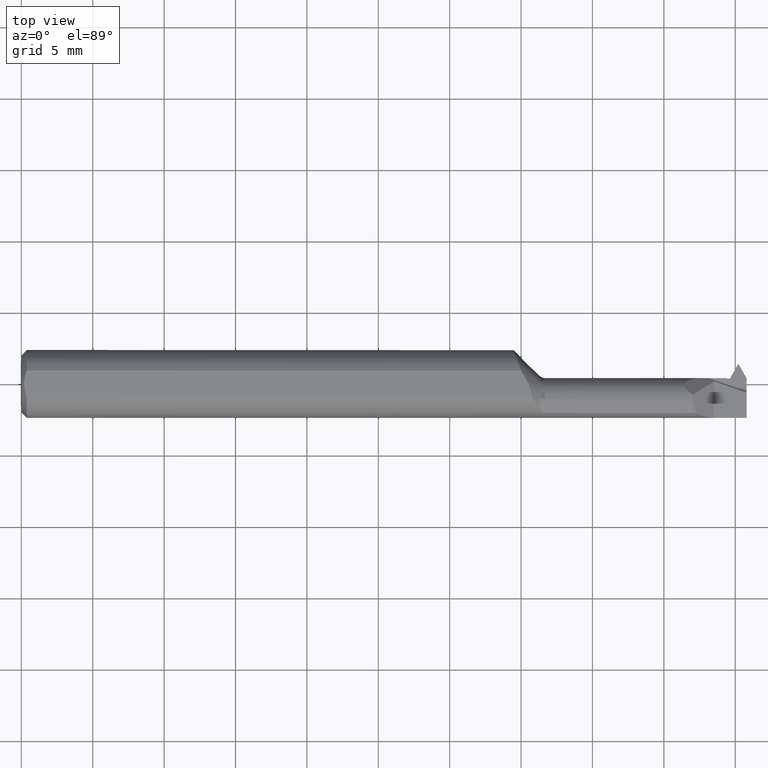
[diagram: clean part render]
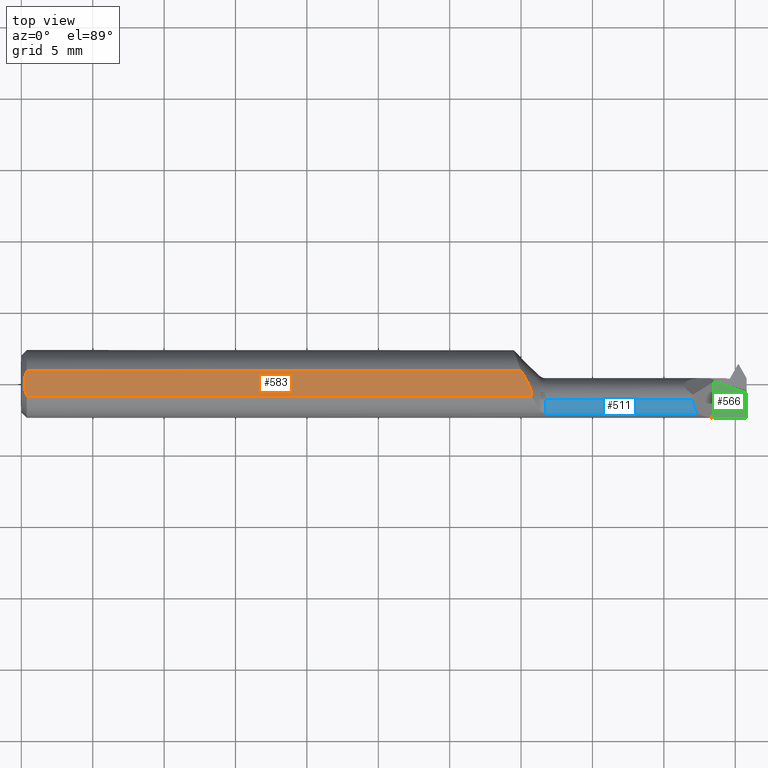
[diagram: same view with three faces highlighted in distinct colors, each labeled with its STEP entity id]
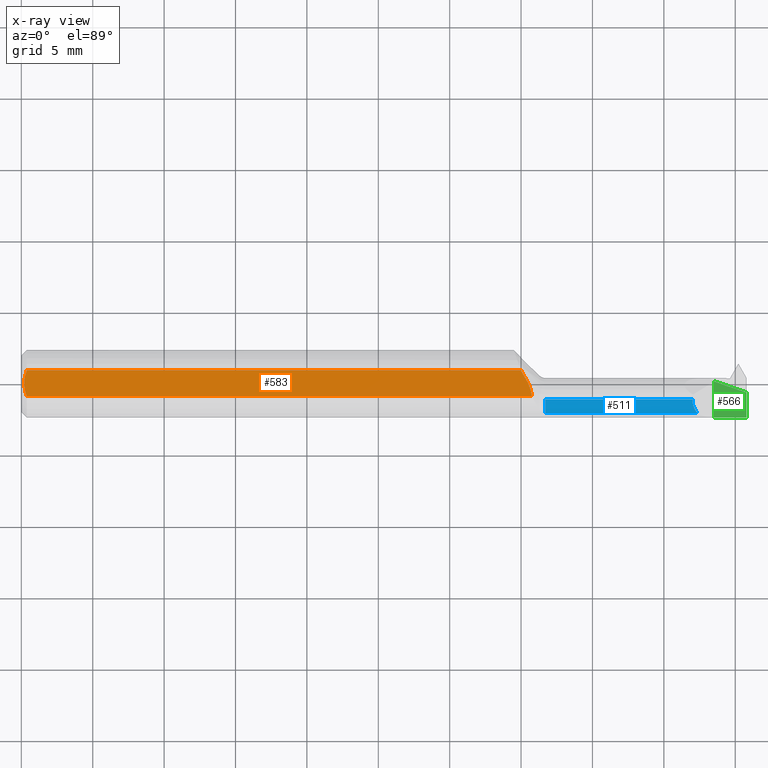
[diagram: x-ray of the same camera — body ghosted, the three highlighted faces saturated]
A machine part, top view with three faces highlighted in distinct colors.
The next image is the same camera in x-ray (body ghosted, the three faces saturated) — at least one of them is partly hidden behind the body in this view.
Their STEP definitions:

[orange] entity #583 — the highlighted planar face has unit normal (-0, 0, -1).
#17 = CARTESIAN_POINT ( 'NONE',  ( 0.01107849272577461977, 0.02400420685728455600, 0.08660000000000001030 ) ) ;
#101 = CARTESIAN_POINT ( 'NONE',  ( 0.008659489716310201507, 0.01217326722089584999, 0.08659999999999998255 ) ) ;
#113 = CARTESIAN_POINT ( 'NONE',  ( 1.377701525703422858, 0.03551619348973097945, 0.08659999999999998255 ) ) ;
#134 = CARTESIAN_POINT ( 'NONE',  ( 0.008649077606599600218, -0.01212214432639825874, 0.08660000000000001030 ) ) ;
#182 = ORIENTED_EDGE ( 'NONE', *, *, #902, .F. ) ;
#187 = PLANE ( 'NONE',  #224 ) ;
#210 = CARTESIAN_POINT ( 'NONE',  ( 0.007999999999999731284, 1.373409503060175658E-17, 0.08659999999999998255 ) ) ;
#224 = AXIS2_PLACEMENT_3D ( 'NONE', #591, #845, #1014 ) ;
#226 = VERTEX_POINT ( 'NONE', #901 ) ;
#233 = ORIENTED_EDGE ( 'NONE', *, *, #820, .F. ) ;
#269 = DIRECTION ( 'NONE',  ( -1.000000000000000000, -0.000000000000000000, -0.000000000000000000 ) ) ;
#273 = VERTEX_POINT ( 'NONE', #468 ) ;
#324 = EDGE_CURVE ( 'NONE', #354, #226, #725, .T. ) ;
#341 = CARTESIAN_POINT ( 'NONE',  ( 1.402683531163871899, -0.009962793248527794868, 0.08659999999999998255 ) ) ;
#348 = CARTESIAN_POINT ( 'NONE',  ( 0.01499999999999997689, -0.03551619348973089618, 0.08659999999999998255 ) ) ;
#350 = LINE ( 'NONE', #775, #645 ) ;
#354 = VERTEX_POINT ( 'NONE', #569 ) ;
#374 = B_SPLINE_CURVE_WITH_KNOTS ( 'NONE', 3,
 ( #590, #688, #781, #341, #869, #430 ),
 .UNSPECIFIED., .F., .F.,
 ( 4, 2, 4 ),
 ( 0.004221996091487671167, 0.005214190001193092991, 0.006206383910898513948 ),
 .UNSPECIFIED. ) ;
#405 = CARTESIAN_POINT ( 'NONE',  ( 0.007999999999999731284, 1.373409503060175658E-17, 0.08659999999999998255 ) ) ;
#406 = ORIENTED_EDGE ( 'NONE', *, *, #324, .T. ) ;
#412 = CARTESIAN_POINT ( 'NONE',  ( 2.000000000000000000, 0.03551619348973089618, 0.08659999999999998255 ) ) ;
#430 = CARTESIAN_POINT ( 'NONE',  ( 1.408023520836405362, -0.03551619348973036189, 0.08659999999999998255 ) ) ;
#453 = CARTESIAN_POINT ( 'NONE',  ( 0.01108864734896783041, -0.02405407040721167788, 0.08659999999999998255 ) ) ;
#468 = CARTESIAN_POINT ( 'NONE',  ( 1.408023520836405362, -0.03551619348973036189, 0.08659999999999998255 ) ) ;
#503 = CARTESIAN_POINT ( 'NONE',  ( 0.007999999999999746897, 0.006084273629736270360, 0.08660000000000001030 ) ) ;
#508 = FACE_OUTER_BOUND ( 'NONE', #1017, .T. ) ;
#509 = VECTOR ( 'NONE', #605, 39.37007874015748143 ) ;
#531 = B_SPLINE_CURVE_WITH_KNOTS ( 'NONE', 3,
 ( #210, #874, #134, #453, #785, #348 ),
 .UNSPECIFIED., .F., .F.,
 ( 4, 2, 4 ),
 ( 0.002803812968293730064, 0.003261451498734896978, 0.003719090029176063891 ),
 .UNSPECIFIED. ) ;
#552 = VERTEX_POINT ( 'NONE', #113 ) ;
#569 = CARTESIAN_POINT ( 'NONE',  ( 0.01499999999999997689, 0.03551619348973089618, 0.08659999999999998255 ) ) ;
#574 = VERTEX_POINT ( 'NONE', #690 ) ;
#583 = ADVANCED_FACE ( 'NONE', ( #508 ), #187, .F. ) ;
#590 = CARTESIAN_POINT ( 'NONE',  ( 1.377701525703422858, 0.03551619348973097945, 0.08659999999999998255 ) ) ;
#591 = CARTESIAN_POINT ( 'NONE',  ( 0.000000000000000000, 0.1749999999999999889, 0.08659999999999998255 ) ) ;
#605 = DIRECTION ( 'NONE',  ( 1.000000000000000000, 0.000000000000000000, 0.000000000000000000 ) ) ;
#626 = CARTESIAN_POINT ( 'NONE',  ( 0.01284132645814099055, 0.02982718733043053169, 0.08659999999999998255 ) ) ;
#645 = VECTOR ( 'NONE', #269, 39.37007874015748143 ) ;
#688 = CARTESIAN_POINT ( 'NONE',  ( 1.384990260883381286, 0.02470984047336751560, 0.08659999999999998255 ) ) ;
#690 = CARTESIAN_POINT ( 'NONE',  ( 0.01499999999999997689, -0.03551619348973089618, 0.08659999999999998255 ) ) ;
#725 = B_SPLINE_CURVE_WITH_KNOTS ( 'NONE', 3,
 ( #1051, #626, #17, #101, #503, #405 ),
 .UNSPECIFIED., .F., .F.,
 ( 4, 2, 4 ),
 ( 0.001890229186177329410, 0.002347021077235529954, 0.002803812968293730064 ),
 .UNSPECIFIED. ) ;
#775 = CARTESIAN_POINT ( 'NONE',  ( 2.000000000000000000, -0.03551619348973089618, 0.08659999999999998255 ) ) ;
#781 = CARTESIAN_POINT ( 'NONE',  ( 1.391750224432351191, 0.01358083083026453974, 0.08660000000000001030 ) ) ;
#785 = CARTESIAN_POINT ( 'NONE',  ( 0.01287312418598231430, -0.02991098762076270859, 0.08660000000000001030 ) ) ;
#820 = EDGE_CURVE ( 'NONE', #354, #552, #838, .T. ) ;
#832 = ORIENTED_EDGE ( 'NONE', *, *, #895, .F. ) ;
#838 = LINE ( 'NONE', #412, #509 ) ;
#845 = DIRECTION ( 'NONE',  ( -0.000000000000000000, 0.000000000000000000, -1.000000000000000000 ) ) ;
#869 = CARTESIAN_POINT ( 'NONE',  ( 1.406820612909631008, -0.02257368972052702441, 0.08660000000000001030 ) ) ;
#874 = CARTESIAN_POINT ( 'NONE',  ( 0.007999999999999741693, -0.006095550506083000954, 0.08659999999999998255 ) ) ;
#895 = EDGE_CURVE ( 'NONE', #552, #273, #374, .T. ) ;
#896 = ORIENTED_EDGE ( 'NONE', *, *, #1022, .T. ) ;
#901 = CARTESIAN_POINT ( 'NONE',  ( 0.007999999999999731284, 1.373409503060175658E-17, 0.08659999999999998255 ) ) ;
#902 = EDGE_CURVE ( 'NONE', #273, #574, #350, .T. ) ;
#1014 = DIRECTION ( 'NONE',  ( -1.000000000000000000, 0.000000000000000000, 0.000000000000000000 ) ) ;
#1017 = EDGE_LOOP ( 'NONE', ( #832, #233, #406, #896, #182 ) ) ;
#1022 = EDGE_CURVE ( 'NONE', #226, #574, #531, .T. ) ;
#1051 = CARTESIAN_POINT ( 'NONE',  ( 0.01499999999999997689, 0.03551619348973089618, 0.08659999999999998255 ) ) ;

[blue] entity #511 — the highlighted cylindrical surface (edge-blend (fillet) strip) has radius 1.524 mm, axis along (-1, -0, -0).
#2 = CARTESIAN_POINT ( 'NONE',  ( 1.863470928347331190, -0.08098532110091748171, 0.04692907165266847758 ) ) ;
#10 = CARTESIAN_POINT ( 'NONE',  ( 1.850399999999999379, -0.04360000000000000681, 0.05999999999999999778 ) ) ;
#12 = ORIENTED_EDGE ( 'NONE', *, *, #191, .T. ) ;
#24 = VECTOR ( 'NONE', #722, 39.37007874015748143 ) ;
#43 = FACE_OUTER_BOUND ( 'NONE', #779, .T. ) ;
#49 = DIRECTION ( 'NONE',  ( 1.000000000000000000, 0.000000000000000000, 0.000000000000000000 ) ) ;
#105 = CARTESIAN_POINT ( 'NONE',  ( 1.445355339059327227, -0.04360000000000000681, 0.05999999999999999778 ) ) ;
#163 = ORIENTED_EDGE ( 'NONE', *, *, #571, .T. ) ;
#169 = VECTOR ( 'NONE', #857, 39.37007874015748143 ) ;
#191 = EDGE_CURVE ( 'NONE', #407, #824, #796, .T. ) ;
#215 = VERTEX_POINT ( 'NONE', #2 ) ;
#244 = CARTESIAN_POINT ( 'NONE',  ( 1.850399999999999379, -0.05731375143557378843, 0.06000000000000001860 ) ) ;
#246 = ORIENTED_EDGE ( 'NONE', *, *, #558, .T. ) ;
#270 = LINE ( 'NONE', #870, #169 ) ;
#307 = AXIS2_PLACEMENT_3D ( 'NONE', #776, #49, #351 ) ;
#332 = VERTEX_POINT ( 'NONE', #494 ) ;
#342 = CARTESIAN_POINT ( 'NONE',  ( 1.854926044998712609, -0.07025909403846865298, 0.05547395500128676077 ) ) ;
#346 = DIRECTION ( 'NONE',  ( -1.000000000000000000, -0.000000000000000000, -0.000000000000000000 ) ) ;
#351 = DIRECTION ( 'NONE',  ( 0.000000000000000000, 0.000000000000000000, 1.000000000000000000 ) ) ;
#398 = EDGE_CURVE ( 'NONE', #215, #407, #925, .T. ) ;
#407 = VERTEX_POINT ( 'NONE', #10 ) ;
#418 = CARTESIAN_POINT ( 'NONE',  ( 1.863470928347331190, -0.08098532110091748171, 0.04692907165266847758 ) ) ;
#431 = DIRECTION ( 'NONE',  ( 0.000000000000000000, 0.000000000000000000, 1.000000000000000000 ) ) ;
#494 = CARTESIAN_POINT ( 'NONE',  ( 1.445355339059327227, -0.08098532110091744007, 0.04692907165266853309 ) ) ;
#501 = ORIENTED_EDGE ( 'NONE', *, *, #398, .T. ) ;
#511 = ADVANCED_FACE ( 'NONE', ( #43 ), #757, .T. ) ;
#558 = EDGE_CURVE ( 'NONE', #332, #215, #270, .T. ) ;
#565 = CARTESIAN_POINT ( 'NONE',  ( 1.434999999999999831, -0.04360000000000000681, 0.05999999999999999778 ) ) ;
#571 = EDGE_CURVE ( 'NONE', #824, #332, #953, .T. ) ;
#595 = CARTESIAN_POINT ( 'NONE',  ( 1.434999999999999831, -0.04360000000000000681, 0.000000000000000000 ) ) ;
#631 = AXIS2_PLACEMENT_3D ( 'NONE', #595, #346, #431 ) ;
#668 = CARTESIAN_POINT ( 'NONE',  ( 1.850399999999999379, -0.04360000000000000681, 0.05999999999999999778 ) ) ;
#722 = DIRECTION ( 'NONE',  ( -1.000000000000000000, -0.000000000000000000, -0.000000000000000000 ) ) ;
#757 = CYLINDRICAL_SURFACE ( 'NONE', #631, 0.05999999999999999778 ) ;
#776 = CARTESIAN_POINT ( 'NONE',  ( 1.445355339059327227, -0.04360000000000000681, 0.000000000000000000 ) ) ;
#779 = EDGE_LOOP ( 'NONE', ( #501, #12, #163, #246 ) ) ;
#796 = LINE ( 'NONE', #565, #24 ) ;
#824 = VERTEX_POINT ( 'NONE', #105 ) ;
#857 = DIRECTION ( 'NONE',  ( 1.000000000000000000, 0.000000000000000000, 0.000000000000000000 ) ) ;
#870 = CARTESIAN_POINT ( 'NONE',  ( 1.692500000000000115, -0.08098532110091744007, 0.04692907165266853309 ) ) ;
#925 =( BOUNDED_CURVE ( )  B_SPLINE_CURVE ( 3, ( #418, #342, #244, #668 ),
 .UNSPECIFIED., .F., .F. ) 
 B_SPLINE_CURVE_WITH_KNOTS ( ( 4, 4 ),
 ( 5.610499824220554821, 6.283185307179586232 ),
 .UNSPECIFIED. ) 
 CURVE ( )  GEOMETRIC_REPRESENTATION_ITEM ( )  RATIONAL_B_SPLINE_CURVE ( ( 1.000000000000000000, 0.9626453375995693840, 0.9626453375995693840, 1.000000000000000000 ) ) 
 REPRESENTATION_ITEM ( '' )  );
#953 = CIRCLE ( 'NONE', #307, 0.05999999999999999778 ) ;

[green] entity #566 — the highlighted planar face has unit normal (-0, 0, -1).
#87 = EDGE_CURVE ( 'NONE', #497, #837, #536, .T. ) ;
#129 = FACE_OUTER_BOUND ( 'NONE', #164, .T. ) ;
#138 = ORIENTED_EDGE ( 'NONE', *, *, #283, .F. ) ;
#155 = EDGE_CURVE ( 'NONE', #854, #995, #455, .T. ) ;
#164 = EDGE_LOOP ( 'NONE', ( #713, #675, #500, #138 ) ) ;
#180 = CARTESIAN_POINT ( 'NONE',  ( 1.910000000000000142, -0.09359999999999998876, -6.429183357567478880E-17 ) ) ;
#220 = CARTESIAN_POINT ( 'NONE',  ( 1.910000000000000142, 0.007137351560174120743, -2.995569586647007890E-17 ) ) ;
#235 = LINE ( 'NONE', #979, #252 ) ;
#237 = EDGE_CURVE ( 'NONE', #837, #995, #957, .T. ) ;
#252 = VECTOR ( 'NONE', #1055, 39.37007874015748143 ) ;
#271 = DIRECTION ( 'NONE',  ( -0.000000000000000000, 1.000000000000000000, -0.000000000000000000 ) ) ;
#283 = EDGE_CURVE ( 'NONE', #497, #854, #235, .T. ) ;
#358 = DIRECTION ( 'NONE',  ( -0.000000000000000000, 0.000000000000000000, -1.000000000000000000 ) ) ;
#360 = CARTESIAN_POINT ( 'NONE',  ( 2.000000000000000000, -0.02397976907481525963, -6.429183357567480113E-17 ) ) ;
#362 = CARTESIAN_POINT ( 'NONE',  ( 2.000000000000000000, -0.09359999999999989162, -6.429183357567480113E-17 ) ) ;
#367 = PLANE ( 'NONE',  #750 ) ;
#455 = LINE ( 'NONE', #691, #868 ) ;
#497 = VERTEX_POINT ( 'NONE', #362 ) ;
#500 = ORIENTED_EDGE ( 'NONE', *, *, #155, .F. ) ;
#527 = CARTESIAN_POINT ( 'NONE',  ( 2.000000000000000000, 0.2999999999999999889, -6.429183357567480113E-17 ) ) ;
#536 = LINE ( 'NONE', #527, #1058 ) ;
#566 = ADVANCED_FACE ( 'NONE', ( #129 ), #367, .F. ) ;
#615 = CARTESIAN_POINT ( 'NONE',  ( 1.910000000000000142, 0.2999999999999999889, -6.429183357567480113E-17 ) ) ;
#675 = ORIENTED_EDGE ( 'NONE', *, *, #237, .T. ) ;
#691 = CARTESIAN_POINT ( 'NONE',  ( 1.910000000000000142, 0.2999999999999999889, -6.429183357567480113E-17 ) ) ;
#713 = ORIENTED_EDGE ( 'NONE', *, *, #87, .T. ) ;
#727 = CARTESIAN_POINT ( 'NONE',  ( 1.969416233223132418, -0.01537361813494930035, -6.829619984160658046E-17 ) ) ;
#750 = AXIS2_PLACEMENT_3D ( 'NONE', #615, #358, #1020 ) ;
#771 = DIRECTION ( 'NONE',  ( -0.000000000000000000, 1.000000000000000000, -0.000000000000000000 ) ) ;
#806 = CARTESIAN_POINT ( 'NONE',  ( 1.939382257108272833, -0.004989497491455070072, -6.829619984160658046E-17 ) ) ;
#837 = VERTEX_POINT ( 'NONE', #360 ) ;
#854 = VERTEX_POINT ( 'NONE', #180 ) ;
#868 = VECTOR ( 'NONE', #271, 39.37007874015748143 ) ;
#886 = CARTESIAN_POINT ( 'NONE',  ( 2.000000000000000000, -0.02397976907481525963, -6.429183357567480113E-17 ) ) ;
#957 =( BOUNDED_CURVE ( )  B_SPLINE_CURVE ( 3, ( #886, #727, #806, #983 ),
 .UNSPECIFIED., .F., .F. ) 
 B_SPLINE_CURVE_WITH_KNOTS ( ( 4, 4 ),
 ( 0.2726088529369872782, 0.3891374444033928182 ),
 .UNSPECIFIED. ) 
 CURVE ( )  GEOMETRIC_REPRESENTATION_ITEM ( )  RATIONAL_B_SPLINE_CURVE ( ( 1.000000000000000000, 0.9988687440274405249, 0.9988687440274405249, 1.000000000000000000 ) ) 
 REPRESENTATION_ITEM ( '' )  );
#979 = CARTESIAN_POINT ( 'NONE',  ( 2.000000000000000000, -0.09360000000000001652, -6.429183357567480113E-17 ) ) ;
#983 = CARTESIAN_POINT ( 'NONE',  ( 1.910000000000000142, 0.007137351560174120743, -2.995569586647007890E-17 ) ) ;
#995 = VERTEX_POINT ( 'NONE', #220 ) ;
#1020 = DIRECTION ( 'NONE',  ( -1.000000000000000000, 0.000000000000000000, 0.000000000000000000 ) ) ;
#1055 = DIRECTION ( 'NONE',  ( -1.000000000000000000, -0.000000000000000000, -0.000000000000000000 ) ) ;
#1058 = VECTOR ( 'NONE', #771, 39.37007874015748143 ) ;